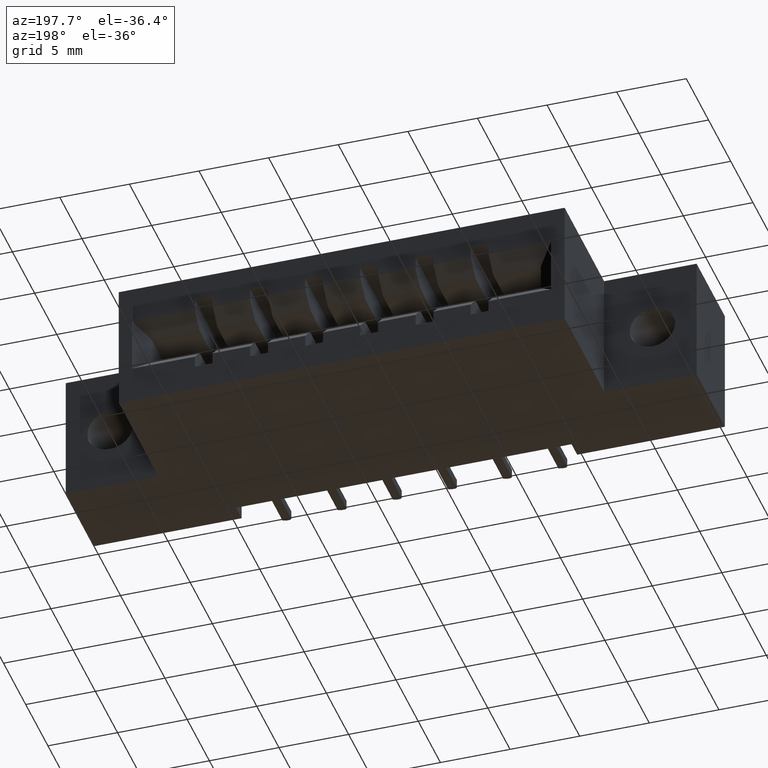
[diagram: clean part render]
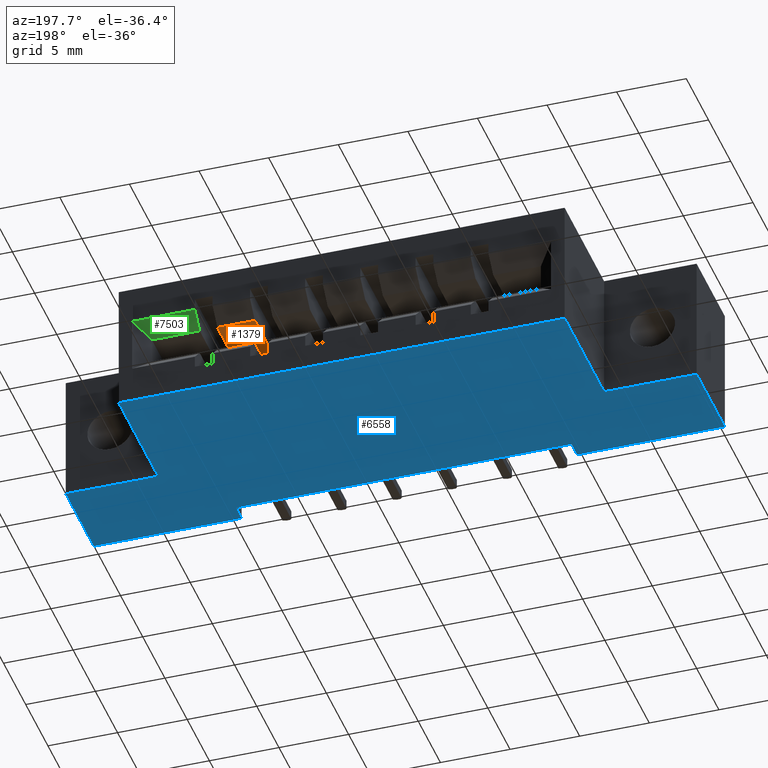
[diagram: same view with three faces highlighted in distinct colors, each labeled with its STEP entity id]
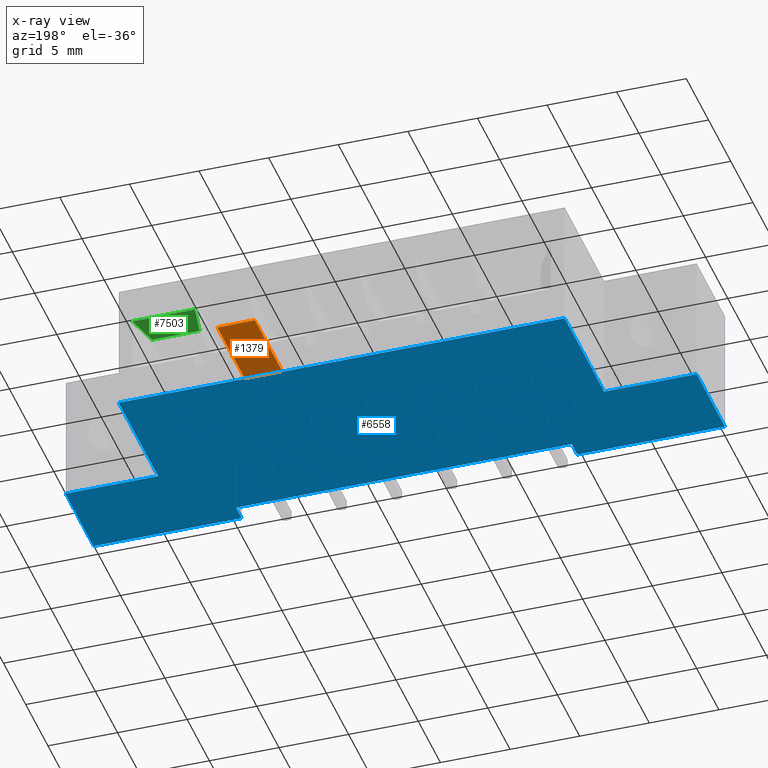
[diagram: x-ray of the same camera — body ghosted, the three highlighted faces saturated]
A machine part, auxiliary view with three faces highlighted in distinct colors.
The next image is the same camera in x-ray (body ghosted, the three faces saturated) — at least one of them is partly hidden behind the body in this view.
Their STEP definitions:

[orange] entity #1379 — the highlighted planar face has unit normal (-0, 0, 1).
#102 = CARTESIAN_POINT ( 'NONE',  ( 1.151000000000000023, 0.5999999999999996447, -0.1480000000000002702 ) ) ;
#201 = ORIENTED_EDGE ( 'NONE', *, *, #1139, .T. ) ;
#570 = EDGE_CURVE ( 'NONE', #1494, #4881, #7179, .T. ) ;
#1073 = CARTESIAN_POINT ( 'NONE',  ( 0.3419999999999999152, 0.2119999999999999385, -0.1480000000000002980 ) ) ;
#1139 = EDGE_CURVE ( 'NONE', #4881, #5891, #4130, .T. ) ;
#1199 = CARTESIAN_POINT ( 'NONE',  ( 1.151000000000000023, 0.2119999999999999385, -0.1480000000000001592 ) ) ;
#1379 = ADVANCED_FACE ( 'NONE', ( #2306 ), #4260, .F. ) ;
#1494 = VERTEX_POINT ( 'NONE', #1199 ) ;
#1601 = VECTOR ( 'NONE', #6385, 39.37007874015748143 ) ;
#1947 = ORIENTED_EDGE ( 'NONE', *, *, #6651, .F. ) ;
#2306 = FACE_OUTER_BOUND ( 'NONE', #7863, .T. ) ;
#2373 = CARTESIAN_POINT ( 'NONE',  ( 1.256999999999999673, 0.5999999999999996447, -0.1480000000000002702 ) ) ;
#2693 = DIRECTION ( 'NONE',  ( -0.0000000000000000000, 1.000000000000000000, -8.801056680619408338E-16 ) ) ;
#2800 = ORIENTED_EDGE ( 'NONE', *, *, #570, .T. ) ;
#3062 = DIRECTION ( 'NONE',  ( -1.552186360036512475E-16, 0.0000000000000000000, 1.000000000000000000 ) ) ;
#3171 = ORIENTED_EDGE ( 'NONE', *, *, #7771, .F. ) ;
#3304 = VERTEX_POINT ( 'NONE', #5373 ) ;
#3576 = DIRECTION ( 'NONE',  ( 1.000000000000000000, 0.0000000000000000000, 1.552186360036512475E-16 ) ) ;
#3814 = LINE ( 'NONE', #2373, #1601 ) ;
#4130 = LINE ( 'NONE', #5975, #4957 ) ;
#4260 = PLANE ( 'NONE',  #8154 ) ;
#4298 = LINE ( 'NONE', #1073, #7103 ) ;
#4848 = DIRECTION ( 'NONE',  ( 1.000000000000000000, 0.0000000000000000000, 1.552186360036512475E-16 ) ) ;
#4881 = VERTEX_POINT ( 'NONE', #4946 ) ;
#4889 = DIRECTION ( 'NONE',  ( 1.000000000000000000, 0.0000000000000000000, 1.552186360036512475E-16 ) ) ;
#4946 = CARTESIAN_POINT ( 'NONE',  ( 1.151000000000000023, 0.5579999999999999405, -0.1480000000000002425 ) ) ;
#4957 = VECTOR ( 'NONE', #4848, 39.37007874015748143 ) ;
#5373 = CARTESIAN_POINT ( 'NONE',  ( 1.256999999999999673, 0.2119999999999998275, -0.1479999999999999372 ) ) ;
#5740 = CARTESIAN_POINT ( 'NONE',  ( 1.256999999999999673, 0.5579999999999999405, -0.1480000000000002425 ) ) ;
#5891 = VERTEX_POINT ( 'NONE', #5740 ) ;
#5975 = CARTESIAN_POINT ( 'NONE',  ( 0.3419999999999999152, 0.5579999999999999405, -0.1480000000000002980 ) ) ;
#6275 = CARTESIAN_POINT ( 'NONE',  ( 0.3419999999999999152, 0.2119999999999999385, -0.1480000000000002980 ) ) ;
#6385 = DIRECTION ( 'NONE',  ( -0.0000000000000000000, 1.000000000000000000, -8.801056680619408338E-16 ) ) ;
#6651 = EDGE_CURVE ( 'NONE', #3304, #5891, #3814, .T. ) ;
#7103 = VECTOR ( 'NONE', #3576, 39.37007874015748143 ) ;
#7179 = LINE ( 'NONE', #102, #7254 ) ;
#7254 = VECTOR ( 'NONE', #2693, 39.37007874015748143 ) ;
#7771 = EDGE_CURVE ( 'NONE', #1494, #3304, #4298, .T. ) ;
#7863 = EDGE_LOOP ( 'NONE', ( #201, #1947, #3171, #2800 ) ) ;
#8154 = AXIS2_PLACEMENT_3D ( 'NONE', #6275, #3062, #4889 ) ;

[blue] entity #6558 — the highlighted planar face has unit normal (0, 0, 1).
#5 = EDGE_CURVE ( 'NONE', #3750, #5019, #3043, .T. ) ;
#70 = ORIENTED_EDGE ( 'NONE', *, *, #6210, .T. ) ;
#128 = EDGE_CURVE ( 'NONE', #4779, #3533, #3878, .T. ) ;
#217 = DIRECTION ( 'NONE',  ( -0.0000000000000000000, -1.000000000000000000, -0.0000000000000000000 ) ) ;
#425 = CARTESIAN_POINT ( 'NONE',  ( 1.522500000000001075, 0.5999999999999999778, -0.3700000000000001621 ) ) ;
#452 = DIRECTION ( 'NONE',  ( -1.000000000000000000, -0.0000000000000000000, -0.0000000000000000000 ) ) ;
#457 = EDGE_CURVE ( 'NONE', #4609, #4844, #3525, .T. ) ;
#472 = DIRECTION ( 'NONE',  ( 1.000000000000000000, 0.0000000000000000000, -0.0000000000000000000 ) ) ;
#491 = LINE ( 'NONE', #3678, #637 ) ;
#510 = ORIENTED_EDGE ( 'NONE', *, *, #457, .T. ) ;
#543 = ORIENTED_EDGE ( 'NONE', *, *, #4398, .F. ) ;
#637 = VECTOR ( 'NONE', #452, 39.37007874015748143 ) ;
#722 = VECTOR ( 'NONE', #217, 39.37007874015748143 ) ;
#784 = CARTESIAN_POINT ( 'NONE',  ( 0.2615000000000001212, 0.2500000000000000000, -0.3699999999999999956 ) ) ;
#799 = CARTESIAN_POINT ( 'NONE',  ( 1.366500000000000936, 0.05000000000000000278, -0.3699999999999999956 ) ) ;
#801 = LINE ( 'NONE', #4527, #4145 ) ;
#831 = CARTESIAN_POINT ( 'NONE',  ( 1.784000000000000474, 0.2500000000000001110, -0.3699999999999999956 ) ) ;
#1006 = VERTEX_POINT ( 'NONE', #7004 ) ;
#1174 = CARTESIAN_POINT ( 'NONE',  ( 0.4174999999999997047, 0.05000000000000000278, -0.3699999999999999956 ) ) ;
#1212 = VECTOR ( 'NONE', #1558, 39.37007874015748143 ) ;
#1230 = FACE_OUTER_BOUND ( 'NONE', #2837, .T. ) ;
#1307 = CARTESIAN_POINT ( 'NONE',  ( 0.0000000000000000000, 0.0000000000000000000, -0.3699999999999999956 ) ) ;
#1308 = DIRECTION ( 'NONE',  ( 1.000000000000000000, 0.0000000000000000000, 0.0000000000000000000 ) ) ;
#1436 = VECTOR ( 'NONE', #2586, 39.37007874015748143 ) ;
#1517 = CARTESIAN_POINT ( 'NONE',  ( 0.0000000000000000000, 0.2500000000000000000, -0.3699999999999999956 ) ) ;
#1558 = DIRECTION ( 'NONE',  ( -1.000000000000000000, -0.0000000000000000000, -0.0000000000000000000 ) ) ;
#1582 = LINE ( 'NONE', #4168, #722 ) ;
#1748 = CARTESIAN_POINT ( 'NONE',  ( 0.0000000000000000000, 0.5999999999999999778, -0.3699999999999999956 ) ) ;
#1865 = CARTESIAN_POINT ( 'NONE',  ( 0.0000000000000000000, 0.2500000000000000000, -0.3699999999999999956 ) ) ;
#1881 = ORIENTED_EDGE ( 'NONE', *, *, #128, .T. ) ;
#1905 = DIRECTION ( 'NONE',  ( -1.000000000000000000, -0.0000000000000000000, -0.0000000000000000000 ) ) ;
#1921 = CARTESIAN_POINT ( 'NONE',  ( 1.522500000000001075, 0.2500000000000000000, -0.3700000000000001621 ) ) ;
#2012 = VECTOR ( 'NONE', #3166, 39.37007874015748143 ) ;
#2586 = DIRECTION ( 'NONE',  ( -0.0000000000000000000, -1.000000000000000000, -0.0000000000000000000 ) ) ;
#2700 = DIRECTION ( 'NONE',  ( -0.0000000000000000000, 1.000000000000000000, -0.0000000000000000000 ) ) ;
#2837 = EDGE_LOOP ( 'NONE', ( #4998, #4763, #2892, #5862, #70, #543, #6473, #510, #6856, #6741, #4962, #1881 ) ) ;
#2892 = ORIENTED_EDGE ( 'NONE', *, *, #5, .F. ) ;
#2912 = EDGE_CURVE ( 'NONE', #3750, #4065, #1582, .T. ) ;
#3043 = LINE ( 'NONE', #5078, #2012 ) ;
#3166 = DIRECTION ( 'NONE',  ( -1.000000000000000000, 0.0000000000000000000, -5.223418725935506022E-16 ) ) ;
#3201 = EDGE_CURVE ( 'NONE', #4609, #6794, #3213, .T. ) ;
#3213 = LINE ( 'NONE', #5799, #6668 ) ;
#3525 = LINE ( 'NONE', #7011, #4681 ) ;
#3533 = VERTEX_POINT ( 'NONE', #4517 ) ;
#3678 = CARTESIAN_POINT ( 'NONE',  ( 0.0000000000000000000, 0.0000000000000000000, -0.3699999999999999956 ) ) ;
#3750 = VERTEX_POINT ( 'NONE', #831 ) ;
#3758 = EDGE_CURVE ( 'NONE', #4779, #6549, #4103, .T. ) ;
#3878 = LINE ( 'NONE', #4556, #7502 ) ;
#4065 = VERTEX_POINT ( 'NONE', #7169 ) ;
#4103 = LINE ( 'NONE', #1517, #1212 ) ;
#4145 = VECTOR ( 'NONE', #5206, 39.37007874015748143 ) ;
#4168 = CARTESIAN_POINT ( 'NONE',  ( 1.784000000000000474, 0.5999999999999999778, -0.3699999999999999956 ) ) ;
#4179 = VECTOR ( 'NONE', #1905, 39.37007874015748143 ) ;
#4337 = DIRECTION ( 'NONE',  ( 0.0000000000000000000, 0.0000000000000000000, 1.000000000000000000 ) ) ;
#4398 = EDGE_CURVE ( 'NONE', #6794, #5999, #6638, .T. ) ;
#4404 = DIRECTION ( 'NONE',  ( -1.000000000000000000, -0.0000000000000000000, -0.0000000000000000000 ) ) ;
#4517 = CARTESIAN_POINT ( 'NONE',  ( 0.2615000000000000657, 0.5999999999999999778, -0.3699999999999999956 ) ) ;
#4527 = CARTESIAN_POINT ( 'NONE',  ( 1.522500000000001075, 0.2500000000000000000, -0.3700000000000001621 ) ) ;
#4556 = CARTESIAN_POINT ( 'NONE',  ( 0.2615000000000000657, 0.2500000000000000000, -0.3699999999999999956 ) ) ;
#4609 = VERTEX_POINT ( 'NONE', #1174 ) ;
#4681 = VECTOR ( 'NONE', #6129, 39.37007874015748143 ) ;
#4690 = DIRECTION ( 'NONE',  ( -0.0000000000000000000, -1.000000000000000000, -0.0000000000000000000 ) ) ;
#4763 = ORIENTED_EDGE ( 'NONE', *, *, #8018, .F. ) ;
#4779 = VERTEX_POINT ( 'NONE', #784 ) ;
#4844 = VERTEX_POINT ( 'NONE', #5615 ) ;
#4962 = ORIENTED_EDGE ( 'NONE', *, *, #3758, .F. ) ;
#4998 = ORIENTED_EDGE ( 'NONE', *, *, #7049, .F. ) ;
#5019 = VERTEX_POINT ( 'NONE', #1921 ) ;
#5078 = CARTESIAN_POINT ( 'NONE',  ( 1.784000000000000474, 0.2500000000000000000, -0.3699999999999999956 ) ) ;
#5206 = DIRECTION ( 'NONE',  ( -0.0000000000000000000, 1.000000000000000000, -0.0000000000000000000 ) ) ;
#5245 = AXIS2_PLACEMENT_3D ( 'NONE', #1748, #4337, #472 ) ;
#5330 = CARTESIAN_POINT ( 'NONE',  ( 1.366500000000000936, 0.05000000000000000278, -0.3699999999999999956 ) ) ;
#5337 = CARTESIAN_POINT ( 'NONE',  ( 0.0000000000000000000, 0.5999999999999999778, -0.3699999999999999956 ) ) ;
#5615 = CARTESIAN_POINT ( 'NONE',  ( 0.4174999999999997047, 0.0000000000000000000, -0.3699999999999999956 ) ) ;
#5799 = CARTESIAN_POINT ( 'NONE',  ( 0.4174999999999997047, 0.05000000000000000278, -0.3699999999999999956 ) ) ;
#5862 = ORIENTED_EDGE ( 'NONE', *, *, #2912, .T. ) ;
#5880 = LINE ( 'NONE', #5337, #1436 ) ;
#5999 = VERTEX_POINT ( 'NONE', #7183 ) ;
#6129 = DIRECTION ( 'NONE',  ( -0.0000000000000000000, -1.000000000000000000, -0.0000000000000000000 ) ) ;
#6210 = EDGE_CURVE ( 'NONE', #4065, #5999, #491, .T. ) ;
#6342 = CARTESIAN_POINT ( 'NONE',  ( 0.0000000000000000000, 0.5999999999999999778, -0.3699999999999999956 ) ) ;
#6473 = ORIENTED_EDGE ( 'NONE', *, *, #3201, .F. ) ;
#6549 = VERTEX_POINT ( 'NONE', #1865 ) ;
#6558 = ADVANCED_FACE ( 'NONE', ( #1230 ), #6955, .F. ) ;
#6638 = LINE ( 'NONE', #5330, #8206 ) ;
#6668 = VECTOR ( 'NONE', #1308, 39.37007874015748143 ) ;
#6695 = EDGE_CURVE ( 'NONE', #4844, #1006, #7864, .T. ) ;
#6741 = ORIENTED_EDGE ( 'NONE', *, *, #8049, .F. ) ;
#6794 = VERTEX_POINT ( 'NONE', #799 ) ;
#6856 = ORIENTED_EDGE ( 'NONE', *, *, #6695, .T. ) ;
#6945 = LINE ( 'NONE', #6342, #7938 ) ;
#6955 = PLANE ( 'NONE',  #5245 ) ;
#7004 = CARTESIAN_POINT ( 'NONE',  ( 0.0000000000000000000, 0.0000000000000000000, -0.3699999999999999956 ) ) ;
#7011 = CARTESIAN_POINT ( 'NONE',  ( 0.4174999999999997047, 0.05000000000000000278, -0.3699999999999999956 ) ) ;
#7049 = EDGE_CURVE ( 'NONE', #8288, #3533, #6945, .T. ) ;
#7169 = CARTESIAN_POINT ( 'NONE',  ( 1.784000000000000474, 0.0000000000000000000, -0.3699999999999999956 ) ) ;
#7183 = CARTESIAN_POINT ( 'NONE',  ( 1.366500000000000936, 0.0000000000000000000, -0.3699999999999999956 ) ) ;
#7502 = VECTOR ( 'NONE', #2700, 39.37007874015748143 ) ;
#7864 = LINE ( 'NONE', #1307, #4179 ) ;
#7938 = VECTOR ( 'NONE', #4404, 39.37007874015748143 ) ;
#8018 = EDGE_CURVE ( 'NONE', #5019, #8288, #801, .T. ) ;
#8049 = EDGE_CURVE ( 'NONE', #6549, #1006, #5880, .T. ) ;
#8206 = VECTOR ( 'NONE', #4690, 39.37007874015748143 ) ;
#8288 = VERTEX_POINT ( 'NONE', #425 ) ;

[green] entity #7503 — the highlighted planar face has unit normal (-0, -0.7071, 0.7071).
#126 = CARTESIAN_POINT ( 'NONE',  ( -4.097771990496386816E-17, 0.5999999999999999778, -0.1060000000000003856 ) ) ;
#259 = LINE ( 'NONE', #126, #7461 ) ;
#367 = CARTESIAN_POINT ( 'NONE',  ( 1.306999999999999718, 0.5999999999999997558, -0.1060000000000003995 ) ) ;
#629 = CARTESIAN_POINT ( 'NONE',  ( 1.306999999999999718, 0.5579999999999999405, -0.1480000000000002147 ) ) ;
#670 = EDGE_CURVE ( 'NONE', #2089, #1485, #4471, .T. ) ;
#1249 = CARTESIAN_POINT ( 'NONE',  ( 0.3419999999999999152, 0.5579999999999999405, -0.1480000000000002980 ) ) ;
#1465 = VECTOR ( 'NONE', #4612, 39.37007874015748143 ) ;
#1485 = VERTEX_POINT ( 'NONE', #1910 ) ;
#1655 = EDGE_CURVE ( 'NONE', #8093, #4907, #259, .T. ) ;
#1910 = CARTESIAN_POINT ( 'NONE',  ( 1.442000000000000615, 0.5579999999999999405, -0.1480000000000001315 ) ) ;
#2072 = LINE ( 'NONE', #629, #1465 ) ;
#2089 = VERTEX_POINT ( 'NONE', #6117 ) ;
#2115 = CARTESIAN_POINT ( 'NONE',  ( 1.484000000000000652, 0.5999999999999999778, -0.1060000000000001635 ) ) ;
#2320 = LINE ( 'NONE', #4906, #7403 ) ;
#3116 = ORIENTED_EDGE ( 'NONE', *, *, #6774, .T. ) ;
#3145 = CARTESIAN_POINT ( 'NONE',  ( 0.3419999999999999152, 0.5579999999999999405, -0.1480000000000002980 ) ) ;
#3235 = VECTOR ( 'NONE', #3836, 39.37007874015748143 ) ;
#3736 = EDGE_LOOP ( 'NONE', ( #7635, #3116, #7580, #4941 ) ) ;
#3836 = DIRECTION ( 'NONE',  ( 1.000000000000000000, 0.0000000000000000000, 1.552186360036512475E-16 ) ) ;
#4386 = FACE_OUTER_BOUND ( 'NONE', #3736, .T. ) ;
#4471 = LINE ( 'NONE', #1249, #3235 ) ;
#4512 = DIRECTION ( 'NONE',  ( 0.5773502691896258421, 0.5773502691896258421, 0.5773502691896255090 ) ) ;
#4548 = EDGE_CURVE ( 'NONE', #1485, #8093, #2320, .T. ) ;
#4612 = DIRECTION ( 'NONE',  ( -0.0000000000000000000, 0.7071067811865477948, 0.7071067811865472397 ) ) ;
#4906 = CARTESIAN_POINT ( 'NONE',  ( 1.442000000000000615, 0.5579999999999999405, -0.1480000000000001315 ) ) ;
#4907 = VERTEX_POINT ( 'NONE', #367 ) ;
#4941 = ORIENTED_EDGE ( 'NONE', *, *, #4548, .F. ) ;
#5100 = PLANE ( 'NONE',  #5885 ) ;
#5810 = DIRECTION ( 'NONE',  ( -1.097561500847082273E-16, -0.7071067811865472397, 0.7071067811865477948 ) ) ;
#5885 = AXIS2_PLACEMENT_3D ( 'NONE', #3145, #5810, #6965 ) ;
#6007 = DIRECTION ( 'NONE',  ( -1.000000000000000000, 0.0000000000000000000, -1.552186360036512475E-16 ) ) ;
#6117 = CARTESIAN_POINT ( 'NONE',  ( 1.306999999999999718, 0.5579999999999999405, -0.1480000000000002425 ) ) ;
#6774 = EDGE_CURVE ( 'NONE', #2089, #4907, #2072, .T. ) ;
#6965 = DIRECTION ( 'NONE',  ( 0.0000000000000000000, -0.7071067811865477948, -0.7071067811865472397 ) ) ;
#7403 = VECTOR ( 'NONE', #4512, 39.37007874015748854 ) ;
#7461 = VECTOR ( 'NONE', #6007, 39.37007874015748143 ) ;
#7503 = ADVANCED_FACE ( 'NONE', ( #4386 ), #5100, .F. ) ;
#7580 = ORIENTED_EDGE ( 'NONE', *, *, #1655, .F. ) ;
#7635 = ORIENTED_EDGE ( 'NONE', *, *, #670, .F. ) ;
#8093 = VERTEX_POINT ( 'NONE', #2115 ) ;